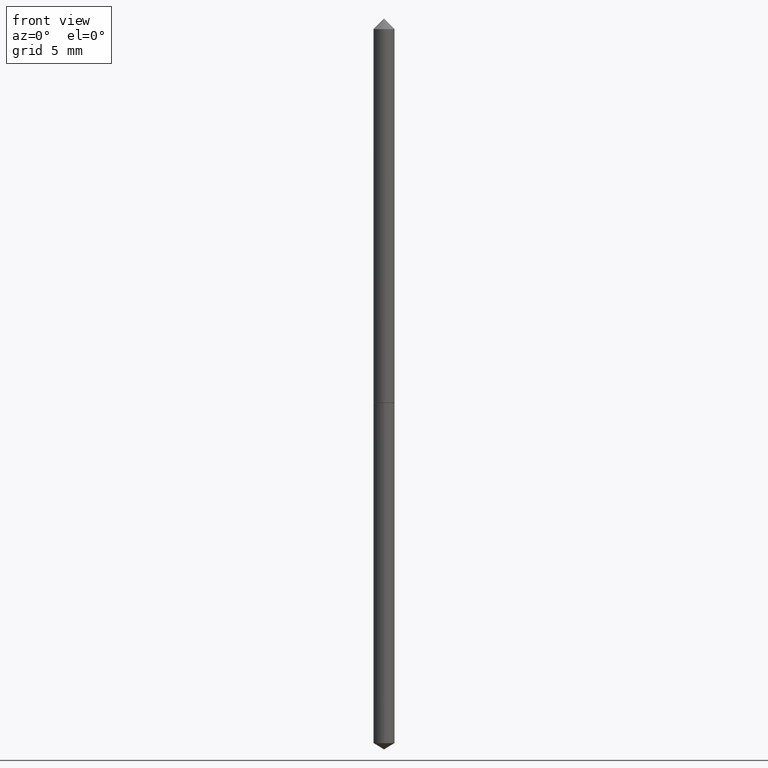
[diagram: clean part render]
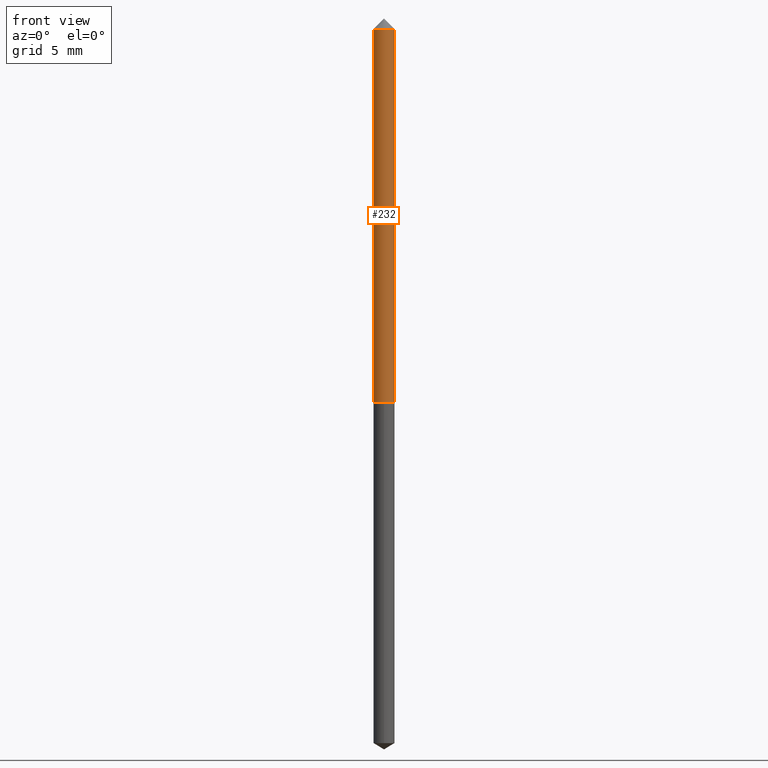
[diagram: same view with one face highlighted and labeled with its STEP entity id]
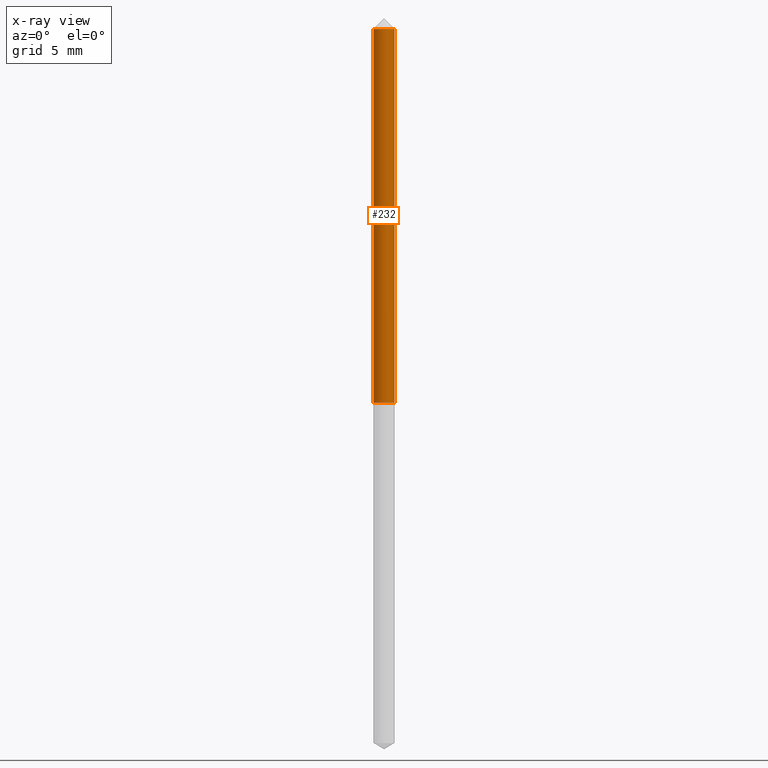
[diagram: x-ray of the same camera — body ghosted, the highlighted face saturated]
A machine part, front view. The second image highlights one B-rep face of the part: STEP entity #232.
The next image is the same camera in x-ray: the body ghosted, the highlighted face saturated — about 0% of this face is hidden behind the body in this view.
In plain terms, the highlighted cylindrical surface (edge-blend (fillet) strip) has radius 0.5461 mm, axis along (-0, 0, 1).
Its self-contained STEP definition (entity closure, byte-faithful):
#3 = EDGE_CURVE ( 'NONE', #119, #11, #162, .T. ) ;
#8 = EDGE_CURVE ( 'NONE', #119, #329, #206, .T. ) ;
#9 = CYLINDRICAL_SURFACE ( 'NONE', #288, 0.02150000000000005726 ) ;
#11 = VERTEX_POINT ( 'NONE', #129 ) ;
#21 = EDGE_CURVE ( 'NONE', #11, #326, #102, .T. ) ;
#31 = CARTESIAN_POINT ( 'NONE',  ( -0.02150000000000005726, 1.527666881884219468E-16, -1.057571044404807502E-30 ) ) ;
#43 = FACE_OUTER_BOUND ( 'NONE', #161, .T. ) ;
#54 = DIRECTION ( 'NONE',  ( -2.445468806185136597E-29, 3.491481338843145583E-15, 1.000000000000000000 ) ) ;
#55 = CARTESIAN_POINT ( 'NONE',  ( 0.02150000000000010236, -2.917132658603448820E-15, -0.7925000000000000933 ) ) ;
#78 = ORIENTED_EDGE ( 'NONE', *, *, #243, .T. ) ;
#87 = VECTOR ( 'NONE', #227, 39.37007874015748143 ) ;
#100 = ORIENTED_EDGE ( 'NONE', *, *, #21, .F. ) ;
#102 = CIRCLE ( 'NONE', #139, 0.02150000000000000522 ) ;
#109 = DIRECTION ( 'NONE',  ( 1.000000000000000000, -6.982962677686265922E-15, 0.000000000000000000 ) ) ;
#118 = CARTESIAN_POINT ( 'NONE',  ( 0.02150000000000005726, -1.501336975702551248E-16, 1.048378006796128830E-30 ) ) ;
#119 = VERTEX_POINT ( 'NONE', #135 ) ;
#129 = CARTESIAN_POINT ( 'NONE',  ( -0.02150000000000000522, -1.285287188247597701E-15, -0.03125000000000020123 ) ) ;
#135 = CARTESIAN_POINT ( 'NONE',  ( -0.02150000000000010236, -2.614232272844770738E-15, -0.7925000000000000933 ) ) ;
#137 = CARTESIAN_POINT ( 'NONE',  ( 1.938034028901720955E-29, -2.766998961033193203E-15, -0.7925000000000000933 ) ) ;
#139 = AXIS2_PLACEMENT_3D ( 'NONE', #360, #244, #109 ) ;
#148 = DIRECTION ( 'NONE',  ( -2.445468806185136597E-29, 3.491481338843145583E-15, 1.000000000000000000 ) ) ;
#161 = EDGE_LOOP ( 'NONE', ( #277, #343, #78, #100 ) ) ;
#162 = LINE ( 'NONE', #31, #165 ) ;
#165 = VECTOR ( 'NONE', #274, 39.37007874015748143 ) ;
#176 = AXIS2_PLACEMENT_3D ( 'NONE', #137, #54, #246 ) ;
#206 = CIRCLE ( 'NONE', #176, 0.02150000000000010236 ) ;
#210 = CARTESIAN_POINT ( 'NONE',  ( 0.02150000000000000522, -2.592424894091037817E-16, -0.03125000000000020123 ) ) ;
#226 = CARTESIAN_POINT ( 'NONE',  ( 0.000000000000000000, 0.000000000000000000, 0.000000000000000000 ) ) ;
#227 = DIRECTION ( 'NONE',  ( -2.445468806185136877E-29, 3.491481338843145188E-15, 1.000000000000000000 ) ) ;
#232 = ADVANCED_FACE ( 'NONE', ( #43 ), #9, .T. ) ;
#243 = EDGE_CURVE ( 'NONE', #329, #326, #364, .T. ) ;
#244 = DIRECTION ( 'NONE',  ( -2.445468806185136597E-29, 3.491481338843145583E-15, 1.000000000000000000 ) ) ;
#246 = DIRECTION ( 'NONE',  ( 1.000000000000000000, -6.982962677686276966E-15, 0.000000000000000000 ) ) ;
#250 = DIRECTION ( 'NONE',  ( 1.000000000000000000, -6.982962677686265922E-15, 4.876176775795935232E-29 ) ) ;
#274 = DIRECTION ( 'NONE',  ( -2.445468806185136877E-29, 3.491481338843145188E-15, 1.000000000000000000 ) ) ;
#277 = ORIENTED_EDGE ( 'NONE', *, *, #3, .F. ) ;
#288 = AXIS2_PLACEMENT_3D ( 'NONE', #226, #148, #250 ) ;
#326 = VERTEX_POINT ( 'NONE', #210 ) ;
#329 = VERTEX_POINT ( 'NONE', #55 ) ;
#343 = ORIENTED_EDGE ( 'NONE', *, *, #8, .T. ) ;
#360 = CARTESIAN_POINT ( 'NONE',  ( 7.642090019328601786E-31, -1.091087918388490144E-16, -0.03125000000000020123 ) ) ;
#364 = LINE ( 'NONE', #118, #87 ) ;